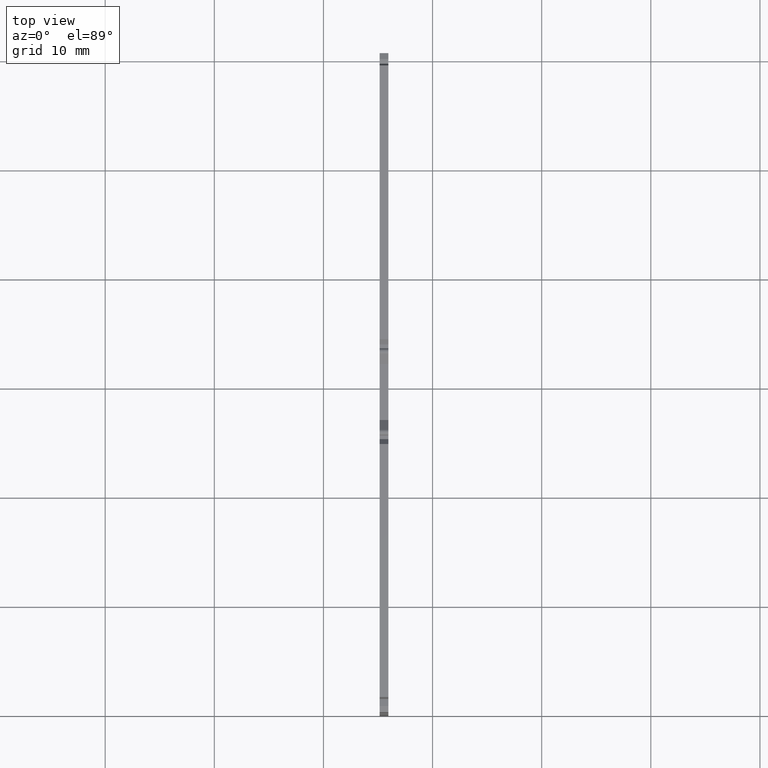
[diagram: clean part render]
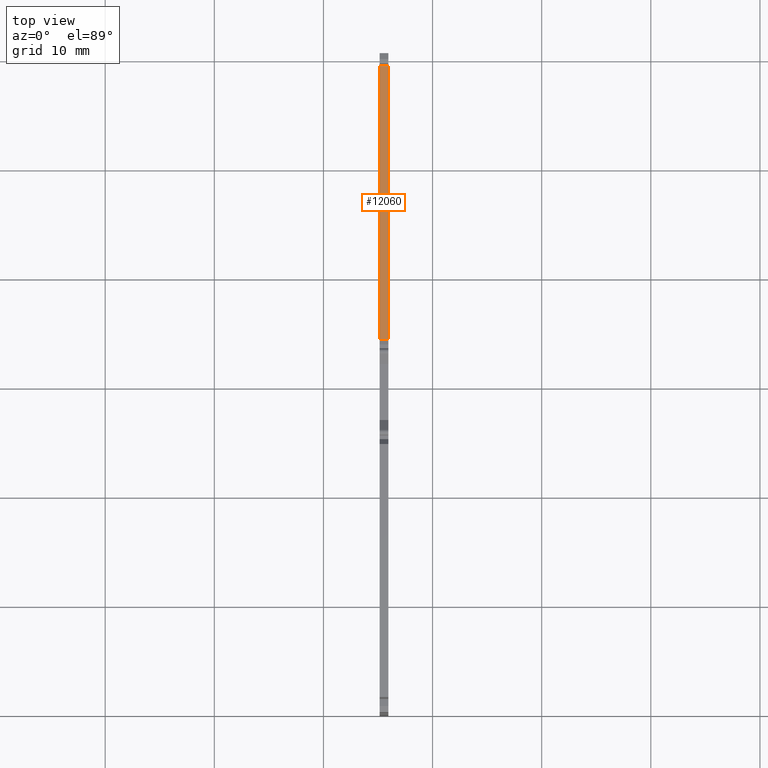
[diagram: same view with one face highlighted and labeled with its STEP entity id]
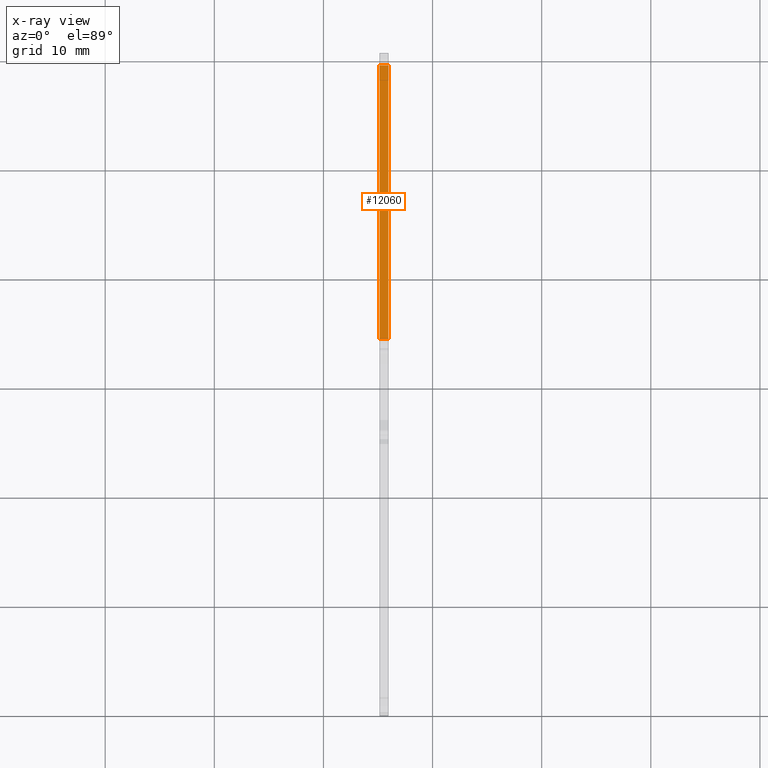
[diagram: x-ray of the same camera — body ghosted, the highlighted face saturated]
A machine part, top view. The second image highlights one B-rep face of the part: STEP entity #12060.
The next image is the same camera in x-ray: the body ghosted, the highlighted face saturated — about 0% of this face is hidden behind the body in this view.
In plain terms, the highlighted planar face has unit normal (-0, -0, -1).
Its self-contained STEP definition (entity closure, byte-faithful):
#1900=CARTESIAN_POINT('',(5.15000000000215,59.1497897161592,
35.2499999999864));
#1910=VERTEX_POINT('',#1900);
#1940=CARTESIAN_POINT('',(5.15000000000215,-11.6296808260461,
35.2500000000039));
#1950=DIRECTION('',(-2.6054385416317E-18,-1.,2.47218912008407E-13));
#1960=VECTOR('',#1950,1.);
#1970=LINE('',#1940,#1960);
#1980=CARTESIAN_POINT('',(5.15000000000215,34.0485682692847,
35.2499999999926));
#1990=VERTEX_POINT('',#1980);
#2000=EDGE_CURVE('',#1910,#1990,#1970,.T.);
#5850=CARTESIAN_POINT('',(5.95000000000217,34.0485682692847,
35.2499999999926));
#5860=VERTEX_POINT('',#5850);
#5890=CARTESIAN_POINT('',(5.95000000000216,-11.6296808260461,
35.2500000000039));
#5900=DIRECTION('',(-5.81165897728895E-17,-1.,2.47218912008407E-13));
#5910=VECTOR('',#5900,1.);
#5920=LINE('',#5890,#5910);
#5930=CARTESIAN_POINT('',(5.95000000000217,59.1497897161592,
35.2499999999864));
#5940=VERTEX_POINT('',#5930);
#5950=EDGE_CURVE('',#5940,#5860,#5920,.T.);
#10970=CARTESIAN_POINT('',(3.80000000000219,59.1497897161592,
35.2499999999864));
#10980=DIRECTION('',(-1.,2.60543854163171E-18,1.33921588269633E-29));
#10990=VECTOR('',#10980,1.);
#11000=LINE('',#10970,#10990);
#11010=EDGE_CURVE('',#5940,#1910,#11000,.T.);
#11900=CARTESIAN_POINT('',(5.15000000000215,58.7302399013064,
35.2499999999865));
#11910=DIRECTION('',(-1.40354070627164E-29,-2.47218912008407E-13,-1.));
#11920=DIRECTION('',(2.6054385416317E-18,1.,-2.47218912008407E-13));
#11930=AXIS2_PLACEMENT_3D('',#11900,#11910,#11920);
#11940=PLANE('',#11930);
#11950=ORIENTED_EDGE('',*,*,#2000,.T.);
#11960=ORIENTED_EDGE('',*,*,#11010,.T.);
#11970=ORIENTED_EDGE('',*,*,#5950,.F.);
#11980=CARTESIAN_POINT('',(3.80000000000219,34.0485682692847,
35.2499999999926));
#11990=DIRECTION('',(-1.,2.60543854163169E-18,1.33896625794425E-29));
#12000=VECTOR('',#11990,1.);
#12010=LINE('',#11980,#12000);
#12020=EDGE_CURVE('',#5860,#1990,#12010,.T.);
#12030=ORIENTED_EDGE('',*,*,#12020,.F.);
#12040=EDGE_LOOP('',(#12030,#11970,#11960,#11950));
#12050=FACE_OUTER_BOUND('',#12040,.T.);
#12060=ADVANCED_FACE('',(#12050),#11940,.F.);